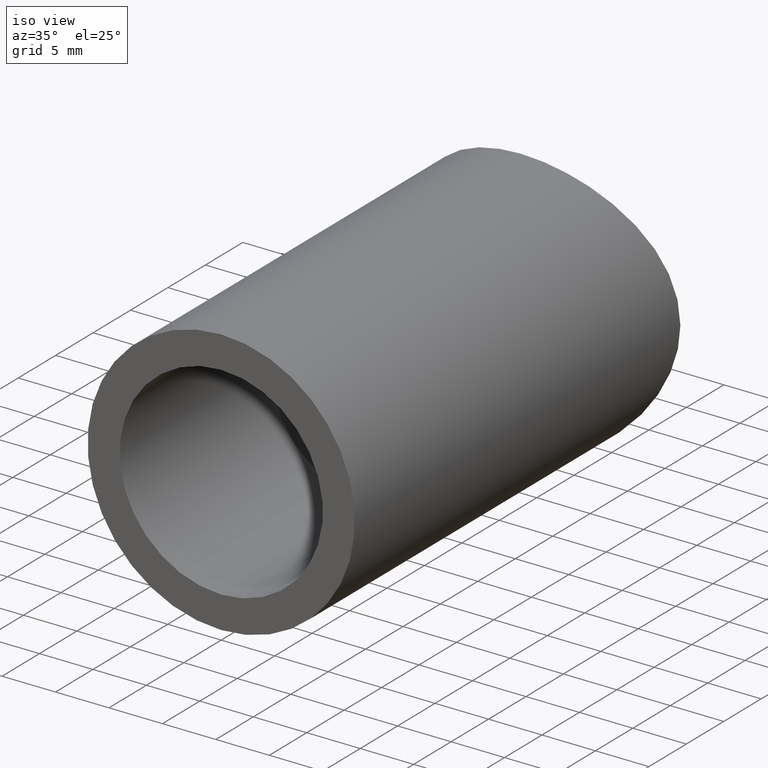
[diagram: clean part render]
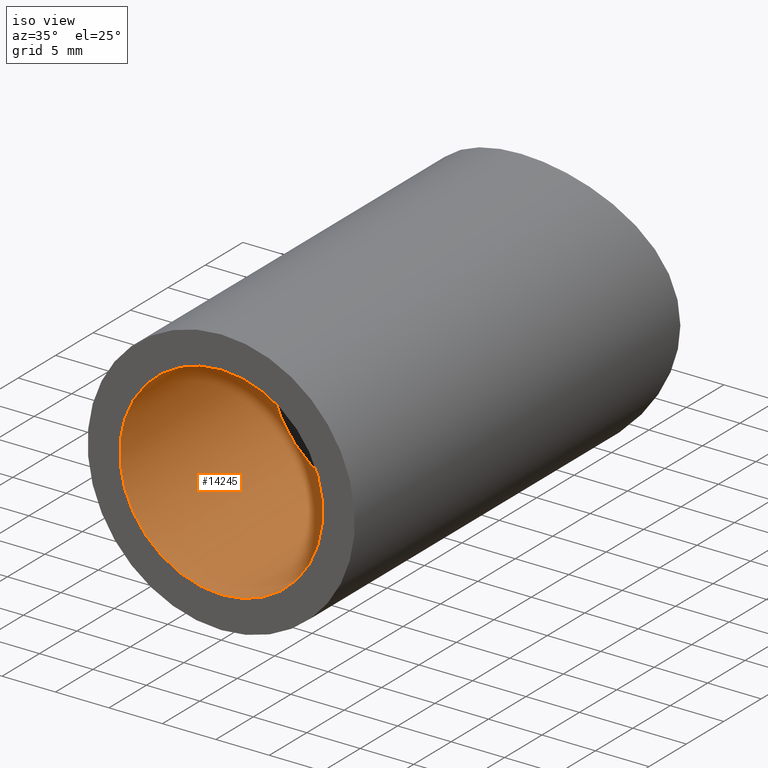
[diagram: same view with one face highlighted and labeled with its STEP entity id]
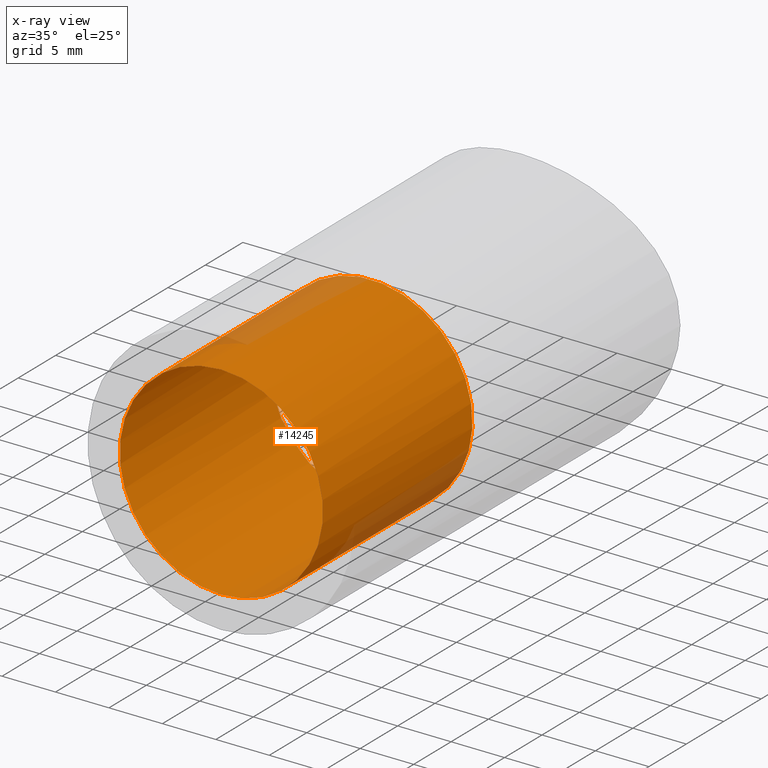
[diagram: x-ray of the same camera — body ghosted, the highlighted face saturated]
A machine part, iso view. The second image highlights one B-rep face of the part: STEP entity #14245.
The next image is the same camera in x-ray: the body ghosted, the highlighted face saturated — about 7% of this face is hidden behind the body in this view.
In plain terms, the highlighted cylindrical surface (bore or boss wall) has radius 9.5 mm, axis along (-0, -1, -0).
Its self-contained STEP definition (entity closure, byte-faithful):
#30 = AXIS2_PLACEMENT_3D ( 'NONE', #4065, #3953, #9911 ) ;
#876 = AXIS2_PLACEMENT_3D ( 'NONE', #13616, #7381, #14796 ) ;
#1083 = CYLINDRICAL_SURFACE ( 'NONE', #876, 9.500000000000000000 ) ;
#1514 = ORIENTED_EDGE ( 'NONE', *, *, #5472, .F. ) ;
#1887 = VERTEX_POINT ( 'NONE', #10822 ) ;
#2600 = CARTESIAN_POINT ( 'NONE',  ( 0.000000000000000000, 20.00000000000000355, -9.500000000000000000 ) ) ;
#2896 = AXIS2_PLACEMENT_3D ( 'NONE', #8436, #5031, #9686 ) ;
#3391 = CIRCLE ( 'NONE', #30, 9.500000000000000000 ) ;
#3891 = EDGE_LOOP ( 'NONE', ( #1514 ) ) ;
#3953 = DIRECTION ( 'NONE',  ( 0.000000000000000000, -1.000000000000000000, 0.000000000000000000 ) ) ;
#4065 = CARTESIAN_POINT ( 'NONE',  ( 0.000000000000000000, 20.00000000000000355, 0.000000000000000000 ) ) ;
#5031 = DIRECTION ( 'NONE',  ( 0.000000000000000000, 1.000000000000000000, 0.000000000000000000 ) ) ;
#5472 = EDGE_CURVE ( 'NONE', #1887, #1887, #13667, .T. ) ;
#5480 = FACE_OUTER_BOUND ( 'NONE', #8911, .T. ) ;
#5493 = EDGE_CURVE ( 'NONE', #11054, #11054, #3391, .T. ) ;
#7381 = DIRECTION ( 'NONE',  ( -0.000000000000000000, -1.000000000000000000, -0.000000000000000000 ) ) ;
#8436 = CARTESIAN_POINT ( 'NONE',  ( 0.000000000000000000, 0.000000000000000000, 0.000000000000000000 ) ) ;
#8911 = EDGE_LOOP ( 'NONE', ( #10736 ) ) ;
#9686 = DIRECTION ( 'NONE',  ( 0.000000000000000000, 0.000000000000000000, 1.000000000000000000 ) ) ;
#9911 = DIRECTION ( 'NONE',  ( 0.000000000000000000, 0.000000000000000000, -1.000000000000000000 ) ) ;
#10736 = ORIENTED_EDGE ( 'NONE', *, *, #5493, .F. ) ;
#10822 = CARTESIAN_POINT ( 'NONE',  ( 0.000000000000000000, 0.000000000000000000, 9.500000000000000000 ) ) ;
#11054 = VERTEX_POINT ( 'NONE', #2600 ) ;
#13172 = FACE_OUTER_BOUND ( 'NONE', #3891, .T. ) ;
#13616 = CARTESIAN_POINT ( 'NONE',  ( 0.000000000000000000, 64.15000000000000568, 0.000000000000000000 ) ) ;
#13667 = CIRCLE ( 'NONE', #2896, 9.500000000000000000 ) ;
#14245 = ADVANCED_FACE ( 'NONE', ( #5480, #13172 ), #1083, .F. ) ;
#14796 = DIRECTION ( 'NONE',  ( 0.000000000000000000, 0.000000000000000000, -1.000000000000000000 ) ) ;